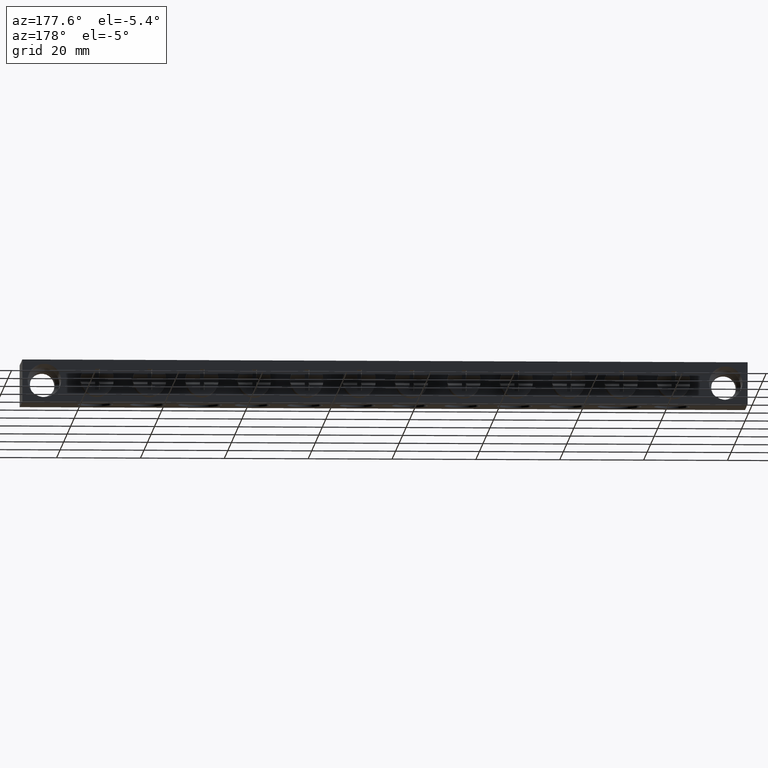
[diagram: clean part render]
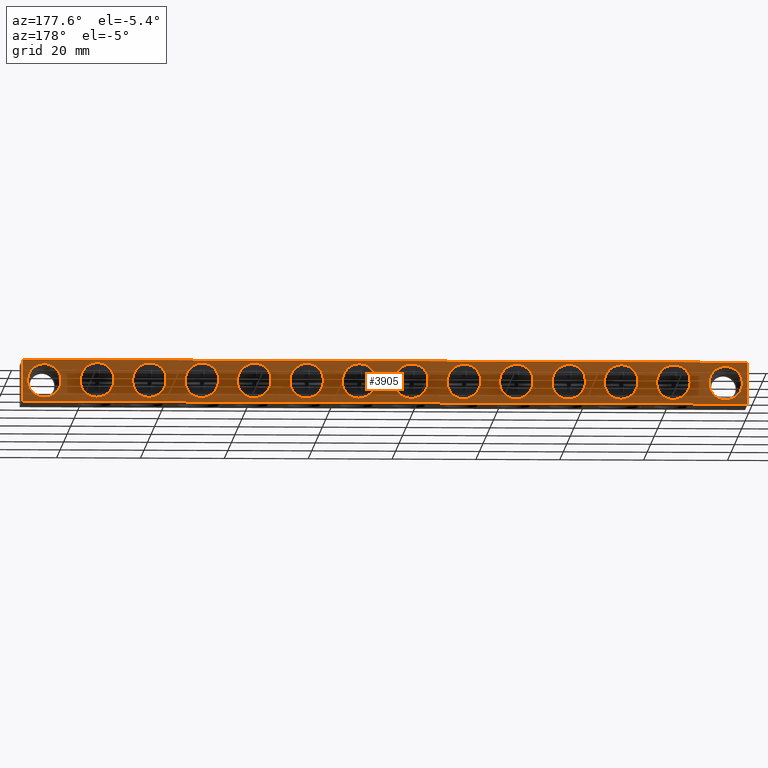
[diagram: same view with one face highlighted and labeled with its STEP entity id]
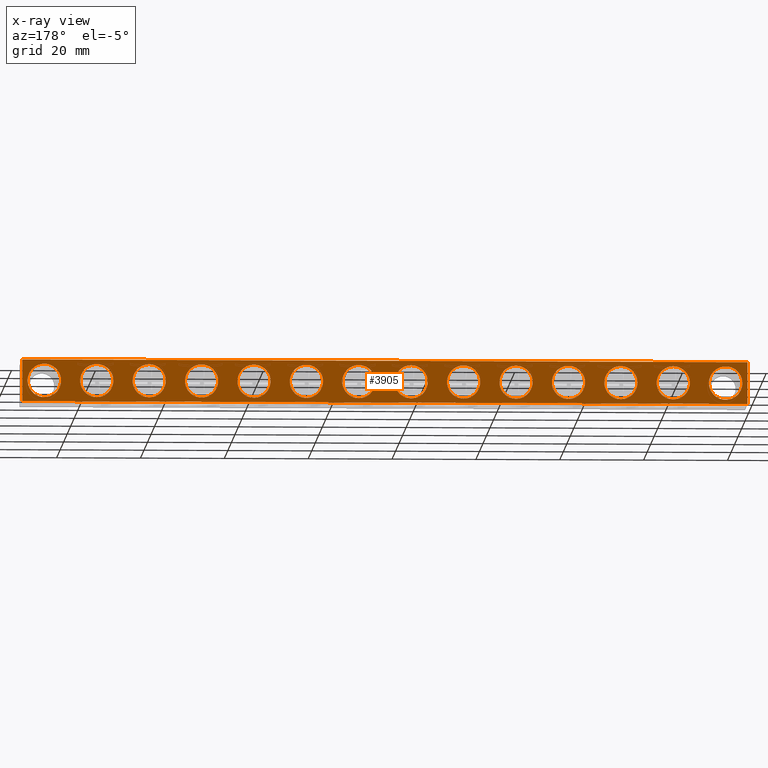
[diagram: x-ray of the same camera — body ghosted, the highlighted face saturated]
A machine part, auxiliary view. The second image highlights one B-rep face of the part: STEP entity #3905.
The next image is the same camera in x-ray: the body ghosted, the highlighted face saturated — about 0% of this face is hidden behind the body in this view.
In plain terms, the highlighted planar face has unit normal (0, -1, 0).
Its self-contained STEP definition (entity closure, byte-faithful):
#847 = CARTESIAN_POINT ( 'NONE',  ( 67.75000000000000000, 15.00000000000000000, -5.000000000000000000 ) ) ;
#861 = DIRECTION ( 'NONE',  ( 0.0000000000000000000, 1.000000000000000000, 0.0000000000000000000 ) ) ;
#887 = DIRECTION ( 'NONE',  ( 0.0000000000000000000, 0.0000000000000000000, 1.000000000000000000 ) ) ;
#1064 = CARTESIAN_POINT ( 'NONE',  ( 167.7499999999999700, 15.00000000000000000, -5.000000000000000000 ) ) ;
#1070 = DIRECTION ( 'NONE',  ( 1.156482317317877900E-016, 1.000000000000000000, 0.0000000000000000000 ) ) ;
#1083 = DIRECTION ( 'NONE',  ( -1.000000000000000000, 0.0000000000000000000, 0.0000000000000000000 ) ) ;
#1116 = DIRECTION ( 'NONE',  ( 0.0000000000000000000, 0.0000000000000000000, 1.000000000000000000 ) ) ;
#1131 = CARTESIAN_POINT ( 'NONE',  ( 30.25000000000000400, 15.00000000000000000, -5.000000000000000000 ) ) ;
#1139 = DIRECTION ( 'NONE',  ( 0.0000000000000000000, 1.000000000000000000, 0.0000000000000000000 ) ) ;
#1150 = DIRECTION ( 'NONE',  ( -1.156482317317877900E-016, 1.000000000000000000, 0.0000000000000000000 ) ) ;
#1151 = DIRECTION ( 'NONE',  ( 0.0000000000000000000, 0.0000000000000000000, 1.000000000000000000 ) ) ;
#1155 = DIRECTION ( 'NONE',  ( -1.000000000000000000, 0.0000000000000000000, 0.0000000000000000000 ) ) ;
#1158 = CARTESIAN_POINT ( 'NONE',  ( 55.25000000000000700, 15.00000000000000000, -5.000000000000000000 ) ) ;
#1161 = DIRECTION ( 'NONE',  ( 0.0000000000000000000, 0.0000000000000000000, 1.000000000000000000 ) ) ;
#1168 = DIRECTION ( 'NONE',  ( 0.0000000000000000000, 1.000000000000000000, 0.0000000000000000000 ) ) ;
#1172 = CARTESIAN_POINT ( 'NONE',  ( 5.250000000000000000, 15.00000000000000000, -5.000000000000000000 ) ) ;
#1180 = DIRECTION ( 'NONE',  ( 0.0000000000000000000, 1.000000000000000000, 0.0000000000000000000 ) ) ;
#1183 = CARTESIAN_POINT ( 'NONE',  ( 17.75000000000000700, 15.00000000000000000, -5.000000000000000000 ) ) ;
#1201 = DIRECTION ( 'NONE',  ( 0.0000000000000000000, 1.000000000000000000, 0.0000000000000000000 ) ) ;
#1206 = CARTESIAN_POINT ( 'NONE',  ( 42.75000000000000000, 15.00000000000000000, -5.000000000000000000 ) ) ;
#1210 = CARTESIAN_POINT ( 'NONE',  ( 80.25000000000000000, 15.00000000000000000, -5.000000000000000000 ) ) ;
#1213 = DIRECTION ( 'NONE',  ( 0.0000000000000000000, 1.000000000000000000, 0.0000000000000000000 ) ) ;
#1215 = DIRECTION ( 'NONE',  ( 0.0000000000000000000, 0.0000000000000000000, 1.000000000000000000 ) ) ;
#1229 = DIRECTION ( 'NONE',  ( 0.0000000000000000000, 0.0000000000000000000, 1.000000000000000000 ) ) ;
#1543 = FACE_BOUND ( 'NONE', #7070, .T. ) ;
#1556 = FACE_BOUND ( 'NONE', #7053, .T. ) ;
#1562 = FACE_OUTER_BOUND ( 'NONE', #7046, .T. ) ;
#1564 = FACE_BOUND ( 'NONE', #7021, .T. ) ;
#1565 = FACE_BOUND ( 'NONE', #7038, .T. ) ;
#1587 = FACE_BOUND ( 'NONE', #7047, .T. ) ;
#1588 = CARTESIAN_POINT ( 'NONE',  ( 0.0000000000000000000, 15.00000000000000000, -10.00000000000000000 ) ) ;
#1589 = DIRECTION ( 'NONE',  ( 0.0000000000000000000, -0.0000000000000000000, -1.000000000000000000 ) ) ;
#1596 = FACE_BOUND ( 'NONE', #7032, .T. ) ;
#1597 = FACE_BOUND ( 'NONE', #7072, .T. ) ;
#1602 = FACE_BOUND ( 'NONE', #7039, .T. ) ;
#1605 = FACE_BOUND ( 'NONE', #7029, .T. ) ;
#1612 = FACE_BOUND ( 'NONE', #7063, .T. ) ;
#1616 = FACE_BOUND ( 'NONE', #7042, .T. ) ;
#1626 = PLANE ( 'NONE',  #3471 ) ;
#1628 = FACE_BOUND ( 'NONE', #7066, .T. ) ;
#1631 = FACE_BOUND ( 'NONE', #7050, .T. ) ;
#1635 = FACE_BOUND ( 'NONE', #7031, .T. ) ;
#1638 = DIRECTION ( 'NONE',  ( 0.0000000000000000000, -1.000000000000000000, 0.0000000000000000000 ) ) ;
#1952 = EDGE_CURVE ( 'NONE', #7419, #7450, #3216, .T. ) ;
#2020 = EDGE_CURVE ( 'NONE', #7364, #7333, #3269, .T. ) ;
#2036 = EDGE_CURVE ( 'NONE', #7388, #7361, #3336, .T. ) ;
#2038 = EDGE_CURVE ( 'NONE', #7368, #7433, #3304, .T. ) ;
#2039 = EDGE_CURVE ( 'NONE', #7335, #7391, #3301, .T. ) ;
#2041 = EDGE_CURVE ( 'NONE', #7350, #7345, #3342, .T. ) ;
#2052 = EDGE_CURVE ( 'NONE', #7452, #7420, #3330, .T. ) ;
#2062 = EDGE_CURVE ( 'NONE', #7383, #7381, #3298, .T. ) ;
#2237 = DIRECTION ( 'NONE',  ( -1.000000000000000000, -0.0000000000000000000, 0.0000000000000000000 ) ) ;
#2248 = LINE ( 'NONE', #2249, #2743 ) ;
#2249 = CARTESIAN_POINT ( 'NONE',  ( 0.0000000000000000000, 15.00000000000000000, -10.00000000000000000 ) ) ;
#2334 = DIRECTION ( 'NONE',  ( 0.0000000000000000000, 1.000000000000000000, 0.0000000000000000000 ) ) ;
#2336 = CARTESIAN_POINT ( 'NONE',  ( 42.75000000000000000, 15.00000000000000000, -5.000000000000000000 ) ) ;
#2337 = LINE ( 'NONE', #2358, #2807 ) ;
#2355 = DIRECTION ( 'NONE',  ( 0.0000000000000000000, 0.0000000000000000000, 1.000000000000000000 ) ) ;
#2356 = DIRECTION ( 'NONE',  ( -1.000000000000000000, -0.0000000000000000000, -0.0000000000000000000 ) ) ;
#2358 = CARTESIAN_POINT ( 'NONE',  ( 0.0000000000000000000, 15.00000000000000000, 0.0000000000000000000 ) ) ;
#2361 = DIRECTION ( 'NONE',  ( 0.0000000000000000000, 0.0000000000000000000, 1.000000000000000000 ) ) ;
#2366 = DIRECTION ( 'NONE',  ( 0.0000000000000000000, 0.0000000000000000000, 1.000000000000000000 ) ) ;
#2368 = CARTESIAN_POINT ( 'NONE',  ( 30.25000000000000400, 15.00000000000000000, -5.000000000000000000 ) ) ;
#2373 = CARTESIAN_POINT ( 'NONE',  ( 80.25000000000000000, 15.00000000000000000, -5.000000000000000000 ) ) ;
#2376 = DIRECTION ( 'NONE',  ( 0.0000000000000000000, 1.000000000000000000, 0.0000000000000000000 ) ) ;
#2380 = DIRECTION ( 'NONE',  ( 0.0000000000000000000, 1.000000000000000000, 0.0000000000000000000 ) ) ;
#2390 = DIRECTION ( 'NONE',  ( 0.0000000000000000000, 1.000000000000000000, 0.0000000000000000000 ) ) ;
#2391 = DIRECTION ( 'NONE',  ( 0.0000000000000000000, 0.0000000000000000000, 1.000000000000000000 ) ) ;
#2394 = CARTESIAN_POINT ( 'NONE',  ( 17.75000000000000700, 15.00000000000000000, -5.000000000000000000 ) ) ;
#2398 = DIRECTION ( 'NONE',  ( 0.0000000000000000000, 1.000000000000000000, 0.0000000000000000000 ) ) ;
#2402 = CARTESIAN_POINT ( 'NONE',  ( 155.2500000000000000, 15.00000000000000000, -5.000000000000000000 ) ) ;
#2405 = CARTESIAN_POINT ( 'NONE',  ( 92.75000000000001400, 15.00000000000000000, -5.000000000000000000 ) ) ;
#2406 = DIRECTION ( 'NONE',  ( 0.0000000000000000000, 0.0000000000000000000, 1.000000000000000000 ) ) ;
#2409 = DIRECTION ( 'NONE',  ( 0.0000000000000000000, 0.0000000000000000000, 1.000000000000000000 ) ) ;
#2410 = DIRECTION ( 'NONE',  ( 0.0000000000000000000, 1.000000000000000000, 0.0000000000000000000 ) ) ;
#2413 = LINE ( 'NONE', #2417, #2857 ) ;
#2417 = CARTESIAN_POINT ( 'NONE',  ( 173.0000000000000600, 15.00000000000000000, -10.00000000000000000 ) ) ;
#2418 = DIRECTION ( 'NONE',  ( -0.0000000000000000000, 0.0000000000000000000, 1.000000000000000000 ) ) ;
#2420 = CARTESIAN_POINT ( 'NONE',  ( 67.75000000000000000, 15.00000000000000000, -5.000000000000000000 ) ) ;
#2421 = DIRECTION ( 'NONE',  ( 0.0000000000000000000, 1.000000000000000000, 0.0000000000000000000 ) ) ;
#2422 = DIRECTION ( 'NONE',  ( 0.0000000000000000000, 0.0000000000000000000, 1.000000000000000000 ) ) ;
#2427 = DIRECTION ( 'NONE',  ( 0.0000000000000000000, 0.0000000000000000000, 1.000000000000000000 ) ) ;
#2433 = CARTESIAN_POINT ( 'NONE',  ( 55.25000000000000700, 15.00000000000000000, -5.000000000000000000 ) ) ;
#2446 = DIRECTION ( 'NONE',  ( 0.0000000000000000000, 1.000000000000000000, 0.0000000000000000000 ) ) ;
#2452 = LINE ( 'NONE', #2463, #2892 ) ;
#2453 = DIRECTION ( 'NONE',  ( -1.156482317317877900E-016, 1.000000000000000000, 0.0000000000000000000 ) ) ;
#2463 = CARTESIAN_POINT ( 'NONE',  ( 0.0000000000000000000, 15.00000000000000000, 0.0000000000000000000 ) ) ;
#2470 = DIRECTION ( 'NONE',  ( -0.0000000000000000000, -0.0000000000000000000, 1.000000000000000000 ) ) ;
#2471 = DIRECTION ( 'NONE',  ( -1.000000000000000000, 0.0000000000000000000, 0.0000000000000000000 ) ) ;
#2478 = CARTESIAN_POINT ( 'NONE',  ( 5.250000000000000000, 15.00000000000000000, -5.000000000000000000 ) ) ;
#2482 = CARTESIAN_POINT ( 'NONE',  ( 142.7500000000000600, 15.00000000000000000, -5.000000000000000000 ) ) ;
#2486 = DIRECTION ( 'NONE',  ( 0.0000000000000000000, 0.0000000000000000000, 1.000000000000000000 ) ) ;
#2489 = DIRECTION ( 'NONE',  ( 0.0000000000000000000, 0.0000000000000000000, 1.000000000000000000 ) ) ;
#2492 = CARTESIAN_POINT ( 'NONE',  ( 117.7500000000000300, 15.00000000000000000, -5.000000000000000000 ) ) ;
#2498 = DIRECTION ( 'NONE',  ( 0.0000000000000000000, 1.000000000000000000, 0.0000000000000000000 ) ) ;
#2499 = DIRECTION ( 'NONE',  ( 0.0000000000000000000, 1.000000000000000000, 0.0000000000000000000 ) ) ;
#2501 = CARTESIAN_POINT ( 'NONE',  ( 105.2500000000000100, 15.00000000000000000, -5.000000000000000000 ) ) ;
#2502 = DIRECTION ( 'NONE',  ( 0.0000000000000000000, 0.0000000000000000000, 1.000000000000000000 ) ) ;
#2510 = DIRECTION ( 'NONE',  ( 0.0000000000000000000, 0.0000000000000000000, 1.000000000000000000 ) ) ;
#2515 = CARTESIAN_POINT ( 'NONE',  ( 130.2500000000000000, 15.00000000000000000, -5.000000000000000000 ) ) ;
#2516 = DIRECTION ( 'NONE',  ( 0.0000000000000000000, 1.000000000000000000, 0.0000000000000000000 ) ) ;
#2519 = DIRECTION ( 'NONE',  ( 0.0000000000000000000, 1.000000000000000000, 0.0000000000000000000 ) ) ;
#2668 = CIRCLE ( 'NONE', #2669, 4.000000000000031100 ) ;
#2669 = AXIS2_PLACEMENT_3D ( 'NONE', #6391, #6424, #6407 ) ;
#2743 = VECTOR ( 'NONE', #2237, 1000.000000000000000 ) ;
#2780 = AXIS2_PLACEMENT_3D ( 'NONE', #2336, #2334, #2355 ) ;
#2800 = CIRCLE ( 'NONE', #2823, 3.960000000000000000 ) ;
#2802 = AXIS2_PLACEMENT_3D ( 'NONE', #2373, #2380, #2366 ) ;
#2807 = VECTOR ( 'NONE', #2356, 1000.000000000000000 ) ;
#2819 = CIRCLE ( 'NONE', #2833, 3.960000000000000000 ) ;
#2821 = CIRCLE ( 'NONE', #2843, 3.960000000000000000 ) ;
#2823 = AXIS2_PLACEMENT_3D ( 'NONE', #2368, #2376, #2361 ) ;
#2829 = CIRCLE ( 'NONE', #2780, 3.960000000000000000 ) ;
#2832 = CIRCLE ( 'NONE', #2802, 3.960000000000000000 ) ;
#2833 = AXIS2_PLACEMENT_3D ( 'NONE', #2402, #2398, #2409 ) ;
#2843 = AXIS2_PLACEMENT_3D ( 'NONE', #2405, #2390, #2391 ) ;
#2844 = AXIS2_PLACEMENT_3D ( 'NONE', #2394, #2410, #2406 ) ;
#2851 = CIRCLE ( 'NONE', #2844, 3.960000000000000000 ) ;
#2854 = AXIS2_PLACEMENT_3D ( 'NONE', #2478, #2453, #2471 ) ;
#2857 = VECTOR ( 'NONE', #2418, 1000.000000000000000 ) ;
#2858 = CIRCLE ( 'NONE', #2883, 3.960000000000000000 ) ;
#2863 = CIRCLE ( 'NONE', #2864, 3.960000000000000000 ) ;
#2864 = AXIS2_PLACEMENT_3D ( 'NONE', #2482, #2519, #2510 ) ;
#2865 = AXIS2_PLACEMENT_3D ( 'NONE', #2515, #2499, #2486 ) ;
#2871 = CIRCLE ( 'NONE', #2872, 3.960000000000000000 ) ;
#2872 = AXIS2_PLACEMENT_3D ( 'NONE', #2501, #2516, #2502 ) ;
#2874 = CIRCLE ( 'NONE', #2875, 3.960000000000000000 ) ;
#2875 = AXIS2_PLACEMENT_3D ( 'NONE', #2492, #2498, #2489 ) ;
#2878 = AXIS2_PLACEMENT_3D ( 'NONE', #2433, #2446, #2427 ) ;
#2879 = CIRCLE ( 'NONE', #2878, 3.960000000000000000 ) ;
#2880 = CIRCLE ( 'NONE', #2854, 4.000000000000038200 ) ;
#2881 = CIRCLE ( 'NONE', #2865, 3.960000000000000000 ) ;
#2883 = AXIS2_PLACEMENT_3D ( 'NONE', #2420, #2421, #2422 ) ;
#2892 = VECTOR ( 'NONE', #2470, 1000.000000000000000 ) ;
#3216 = CIRCLE ( 'NONE', #3217, 3.960000000000000000 ) ;
#3217 = AXIS2_PLACEMENT_3D ( 'NONE', #847, #861, #887 ) ;
#3269 = CIRCLE ( 'NONE', #3273, 4.000000000000031100 ) ;
#3273 = AXIS2_PLACEMENT_3D ( 'NONE', #1064, #1070, #1083 ) ;
#3298 = CIRCLE ( 'NONE', #3299, 3.960000000000000000 ) ;
#3299 = AXIS2_PLACEMENT_3D ( 'NONE', #1206, #1213, #1215 ) ;
#3301 = CIRCLE ( 'NONE', #3327, 4.000000000000038200 ) ;
#3304 = CIRCLE ( 'NONE', #3313, 3.960000000000000000 ) ;
#3308 = AXIS2_PLACEMENT_3D ( 'NONE', #1131, #1139, #1116 ) ;
#3313 = AXIS2_PLACEMENT_3D ( 'NONE', #1158, #1180, #1151 ) ;
#3327 = AXIS2_PLACEMENT_3D ( 'NONE', #1172, #1150, #1155 ) ;
#3330 = CIRCLE ( 'NONE', #3345, 3.960000000000000000 ) ;
#3336 = CIRCLE ( 'NONE', #3308, 3.960000000000000000 ) ;
#3342 = CIRCLE ( 'NONE', #3343, 3.960000000000000000 ) ;
#3343 = AXIS2_PLACEMENT_3D ( 'NONE', #1183, #1168, #1161 ) ;
#3345 = AXIS2_PLACEMENT_3D ( 'NONE', #1210, #1201, #1229 ) ;
#3471 = AXIS2_PLACEMENT_3D ( 'NONE', #1588, #1638, #1589 ) ;
#3518 = AXIS2_PLACEMENT_3D ( 'NONE', #5804, #5808, #5826 ) ;
#3519 = CIRCLE ( 'NONE', #3518, 3.960000000000000000 ) ;
#3553 = CIRCLE ( 'NONE', #3564, 3.960000000000000000 ) ;
#3557 = AXIS2_PLACEMENT_3D ( 'NONE', #5799, #5800, #5864 ) ;
#3564 = AXIS2_PLACEMENT_3D ( 'NONE', #5874, #5896, #5876 ) ;
#3567 = CIRCLE ( 'NONE', #3595, 3.960000000000000000 ) ;
#3579 = CIRCLE ( 'NONE', #3557, 3.960000000000000000 ) ;
#3595 = AXIS2_PLACEMENT_3D ( 'NONE', #5941, #5926, #5927 ) ;
#3597 = CIRCLE ( 'NONE', #3598, 3.960000000000000000 ) ;
#3598 = AXIS2_PLACEMENT_3D ( 'NONE', #5967, #5971, #5974 ) ;
#3602 = CIRCLE ( 'NONE', #3611, 3.960000000000000000 ) ;
#3611 = AXIS2_PLACEMENT_3D ( 'NONE', #5977, #5985, #5956 ) ;
#3668 = CARTESIAN_POINT ( 'NONE',  ( 0.0000000000000000000, 15.00000000000000000, 0.0000000000000000000 ) ) ;
#3680 = CARTESIAN_POINT ( 'NONE',  ( 173.0000000000000600, 15.00000000000000000, 0.0000000000000000000 ) ) ;
#3695 = CARTESIAN_POINT ( 'NONE',  ( 0.0000000000000000000, 15.00000000000000000, -10.00000000000000000 ) ) ;
#3702 = CARTESIAN_POINT ( 'NONE',  ( 173.0000000000000600, 15.00000000000000000, -10.00000000000000000 ) ) ;
#3730 = CARTESIAN_POINT ( 'NONE',  ( 163.7499999999999400, 15.00000000000000000, -5.000000000000000000 ) ) ;
#3755 = CARTESIAN_POINT ( 'NONE',  ( 17.75000000000000700, 15.00000000000000000, -8.959999999999999100 ) ) ;
#3762 = CARTESIAN_POINT ( 'NONE',  ( 30.25000000000000400, 15.00000000000000000, -8.959999999999999100 ) ) ;
#3763 = CARTESIAN_POINT ( 'NONE',  ( 171.7500000000000000, 15.00000000000000000, -4.999999999999999100 ) ) ;
#3766 = CARTESIAN_POINT ( 'NONE',  ( 55.25000000000000700, 15.00000000000000000, -1.040000000000000000 ) ) ;
#3775 = CARTESIAN_POINT ( 'NONE',  ( 17.75000000000000700, 15.00000000000000000, -1.040000000000000000 ) ) ;
#3779 = CARTESIAN_POINT ( 'NONE',  ( 9.250000000000039100, 15.00000000000000000, -4.999999999999999100 ) ) ;
#3790 = CARTESIAN_POINT ( 'NONE',  ( 30.25000000000000400, 15.00000000000000000, -1.040000000000000000 ) ) ;
#3791 = CARTESIAN_POINT ( 'NONE',  ( 42.75000000000000000, 15.00000000000000000, -1.040000000000000000 ) ) ;
#3801 = CARTESIAN_POINT ( 'NONE',  ( 1.249999999999962000, 15.00000000000000000, -5.000000000000000000 ) ) ;
#3802 = CARTESIAN_POINT ( 'NONE',  ( 92.75000000000001400, 15.00000000000000000, -8.959999999999999100 ) ) ;
#3803 = CARTESIAN_POINT ( 'NONE',  ( 42.75000000000000000, 15.00000000000000000, -8.959999999999999100 ) ) ;
#3804 = CARTESIAN_POINT ( 'NONE',  ( 92.75000000000001400, 15.00000000000000000, -1.040000000000000000 ) ) ;
#3820 = CARTESIAN_POINT ( 'NONE',  ( 80.25000000000000000, 15.00000000000000000, -1.040000000000000000 ) ) ;
#3828 = CARTESIAN_POINT ( 'NONE',  ( 142.7500000000000600, 15.00000000000000000, -8.959999999999999100 ) ) ;
#3829 = CARTESIAN_POINT ( 'NONE',  ( 67.75000000000000000, 15.00000000000000000, -8.959999999999999100 ) ) ;
#3834 = CARTESIAN_POINT ( 'NONE',  ( 117.7500000000000300, 15.00000000000000000, -1.040000000000000000 ) ) ;
#3838 = CARTESIAN_POINT ( 'NONE',  ( 155.2500000000000000, 15.00000000000000000, -8.959999999999999100 ) ) ;
#3841 = CARTESIAN_POINT ( 'NONE',  ( 117.7500000000000300, 15.00000000000000000, -8.959999999999999100 ) ) ;
#3845 = CARTESIAN_POINT ( 'NONE',  ( 67.75000000000000000, 15.00000000000000000, -1.040000000000000000 ) ) ;
#3846 = CARTESIAN_POINT ( 'NONE',  ( 80.25000000000000000, 15.00000000000000000, -8.959999999999999100 ) ) ;
#3853 = CARTESIAN_POINT ( 'NONE',  ( 142.7500000000000600, 15.00000000000000000, -1.040000000000000000 ) ) ;
#3854 = CARTESIAN_POINT ( 'NONE',  ( 130.2500000000000000, 15.00000000000000000, -1.040000000000000000 ) ) ;
#3858 = CARTESIAN_POINT ( 'NONE',  ( 55.25000000000000700, 15.00000000000000000, -8.959999999999999100 ) ) ;
#3865 = CARTESIAN_POINT ( 'NONE',  ( 130.2500000000000000, 15.00000000000000000, -8.959999999999999100 ) ) ;
#3868 = CARTESIAN_POINT ( 'NONE',  ( 105.2500000000000100, 15.00000000000000000, -1.040000000000000000 ) ) ;
#3871 = CARTESIAN_POINT ( 'NONE',  ( 155.2500000000000000, 15.00000000000000000, -1.040000000000000000 ) ) ;
#3905 = ADVANCED_FACE ( 'NONE', ( #1556, #1562, #1587, #1612, #1564, #1565, #1596, #1597, #1631, #1543, #1605, #1635, #1616, #1602, #1628 ), #1626, .F. ) ;
#4002 = EDGE_CURVE ( 'NONE', #7461, #7465, #3519, .T. ) ;
#4010 = EDGE_CURVE ( 'NONE', #7443, #7413, #3579, .T. ) ;
#4033 = EDGE_CURVE ( 'NONE', #7403, #7394, #3553, .T. ) ;
#4048 = EDGE_CURVE ( 'NONE', #7439, #7481, #3567, .T. ) ;
#4054 = EDGE_CURVE ( 'NONE', #7453, #7463, #3602, .T. ) ;
#4057 = EDGE_CURVE ( 'NONE', #7438, #7448, #3597, .T. ) ;
#4145 = EDGE_CURVE ( 'NONE', #7333, #7364, #2668, .T. ) ;
#4182 = EDGE_CURVE ( 'NONE', #7293, #7268, #2248, .T. ) ;
#4208 = EDGE_CURVE ( 'NONE', #7381, #7383, #2829, .T. ) ;
#4211 = EDGE_CURVE ( 'NONE', #7291, #7286, #2337, .T. ) ;
#4215 = EDGE_CURVE ( 'NONE', #7361, #7388, #2800, .T. ) ;
#4216 = EDGE_CURVE ( 'NONE', #7420, #7452, #2832, .T. ) ;
#4223 = EDGE_CURVE ( 'NONE', #7463, #7453, #2819, .T. ) ;
#4224 = EDGE_CURVE ( 'NONE', #7394, #7403, #2821, .T. ) ;
#4226 = EDGE_CURVE ( 'NONE', #7345, #7350, #2851, .T. ) ;
#4233 = EDGE_CURVE ( 'NONE', #7293, #7291, #2413, .T. ) ;
#4234 = EDGE_CURVE ( 'NONE', #7450, #7419, #2858, .T. ) ;
#4240 = EDGE_CURVE ( 'NONE', #7433, #7368, #2879, .T. ) ;
#4248 = EDGE_CURVE ( 'NONE', #7391, #7335, #2880, .T. ) ;
#4249 = EDGE_CURVE ( 'NONE', #7268, #7286, #2452, .T. ) ;
#4251 = EDGE_CURVE ( 'NONE', #7413, #7443, #2881, .T. ) ;
#4253 = EDGE_CURVE ( 'NONE', #7481, #7439, #2871, .T. ) ;
#4254 = EDGE_CURVE ( 'NONE', #7465, #7461, #2874, .T. ) ;
#4255 = EDGE_CURVE ( 'NONE', #7448, #7438, #2863, .T. ) ;
#4999 = ORIENTED_EDGE ( 'NONE', *, *, #4248, .F. ) ;
#5005 = ORIENTED_EDGE ( 'NONE', *, *, #2041, .F. ) ;
#5006 = ORIENTED_EDGE ( 'NONE', *, *, #2062, .F. ) ;
#5007 = ORIENTED_EDGE ( 'NONE', *, *, #4233, .F. ) ;
#5008 = ORIENTED_EDGE ( 'NONE', *, *, #2038, .F. ) ;
#5010 = ORIENTED_EDGE ( 'NONE', *, *, #4033, .F. ) ;
#5014 = ORIENTED_EDGE ( 'NONE', *, *, #4234, .F. ) ;
#5019 = ORIENTED_EDGE ( 'NONE', *, *, #2036, .F. ) ;
#5020 = ORIENTED_EDGE ( 'NONE', *, *, #4010, .F. ) ;
#5026 = ORIENTED_EDGE ( 'NONE', *, *, #4208, .F. ) ;
#5027 = ORIENTED_EDGE ( 'NONE', *, *, #1952, .F. ) ;
#5035 = ORIENTED_EDGE ( 'NONE', *, *, #4254, .F. ) ;
#5038 = ORIENTED_EDGE ( 'NONE', *, *, #2039, .F. ) ;
#5039 = ORIENTED_EDGE ( 'NONE', *, *, #4145, .F. ) ;
#5047 = ORIENTED_EDGE ( 'NONE', *, *, #4224, .F. ) ;
#5048 = ORIENTED_EDGE ( 'NONE', *, *, #4002, .F. ) ;
#5049 = ORIENTED_EDGE ( 'NONE', *, *, #4215, .F. ) ;
#5056 = ORIENTED_EDGE ( 'NONE', *, *, #2052, .F. ) ;
#5058 = ORIENTED_EDGE ( 'NONE', *, *, #4255, .F. ) ;
#5060 = ORIENTED_EDGE ( 'NONE', *, *, #4240, .F. ) ;
#5067 = ORIENTED_EDGE ( 'NONE', *, *, #4211, .F. ) ;
#5071 = ORIENTED_EDGE ( 'NONE', *, *, #2020, .F. ) ;
#5072 = ORIENTED_EDGE ( 'NONE', *, *, #4249, .T. ) ;
#5073 = ORIENTED_EDGE ( 'NONE', *, *, #4216, .F. ) ;
#5074 = ORIENTED_EDGE ( 'NONE', *, *, #4253, .F. ) ;
#5080 = ORIENTED_EDGE ( 'NONE', *, *, #4182, .T. ) ;
#5081 = ORIENTED_EDGE ( 'NONE', *, *, #4057, .F. ) ;
#5101 = ORIENTED_EDGE ( 'NONE', *, *, #4226, .F. ) ;
#5106 = ORIENTED_EDGE ( 'NONE', *, *, #4223, .F. ) ;
#5107 = ORIENTED_EDGE ( 'NONE', *, *, #4251, .F. ) ;
#5108 = ORIENTED_EDGE ( 'NONE', *, *, #4054, .F. ) ;
#5121 = ORIENTED_EDGE ( 'NONE', *, *, #4048, .F. ) ;
#5799 = CARTESIAN_POINT ( 'NONE',  ( 130.2500000000000000, 15.00000000000000000, -5.000000000000000000 ) ) ;
#5800 = DIRECTION ( 'NONE',  ( 0.0000000000000000000, 1.000000000000000000, 0.0000000000000000000 ) ) ;
#5804 = CARTESIAN_POINT ( 'NONE',  ( 117.7500000000000300, 15.00000000000000000, -5.000000000000000000 ) ) ;
#5808 = DIRECTION ( 'NONE',  ( 0.0000000000000000000, 1.000000000000000000, 0.0000000000000000000 ) ) ;
#5826 = DIRECTION ( 'NONE',  ( 0.0000000000000000000, 0.0000000000000000000, 1.000000000000000000 ) ) ;
#5864 = DIRECTION ( 'NONE',  ( 0.0000000000000000000, 0.0000000000000000000, 1.000000000000000000 ) ) ;
#5874 = CARTESIAN_POINT ( 'NONE',  ( 92.75000000000001400, 15.00000000000000000, -5.000000000000000000 ) ) ;
#5876 = DIRECTION ( 'NONE',  ( 0.0000000000000000000, 0.0000000000000000000, 1.000000000000000000 ) ) ;
#5896 = DIRECTION ( 'NONE',  ( 0.0000000000000000000, 1.000000000000000000, 0.0000000000000000000 ) ) ;
#5926 = DIRECTION ( 'NONE',  ( 0.0000000000000000000, 1.000000000000000000, 0.0000000000000000000 ) ) ;
#5927 = DIRECTION ( 'NONE',  ( 0.0000000000000000000, 0.0000000000000000000, 1.000000000000000000 ) ) ;
#5941 = CARTESIAN_POINT ( 'NONE',  ( 105.2500000000000100, 15.00000000000000000, -5.000000000000000000 ) ) ;
#5956 = DIRECTION ( 'NONE',  ( 0.0000000000000000000, 0.0000000000000000000, 1.000000000000000000 ) ) ;
#5967 = CARTESIAN_POINT ( 'NONE',  ( 142.7500000000000600, 15.00000000000000000, -5.000000000000000000 ) ) ;
#5971 = DIRECTION ( 'NONE',  ( 0.0000000000000000000, 1.000000000000000000, 0.0000000000000000000 ) ) ;
#5974 = DIRECTION ( 'NONE',  ( 0.0000000000000000000, 0.0000000000000000000, 1.000000000000000000 ) ) ;
#5977 = CARTESIAN_POINT ( 'NONE',  ( 155.2500000000000000, 15.00000000000000000, -5.000000000000000000 ) ) ;
#5985 = DIRECTION ( 'NONE',  ( 0.0000000000000000000, 1.000000000000000000, 0.0000000000000000000 ) ) ;
#6391 = CARTESIAN_POINT ( 'NONE',  ( 167.7499999999999700, 15.00000000000000000, -5.000000000000000000 ) ) ;
#6407 = DIRECTION ( 'NONE',  ( -1.000000000000000000, 0.0000000000000000000, 0.0000000000000000000 ) ) ;
#6424 = DIRECTION ( 'NONE',  ( 1.156482317317877900E-016, 1.000000000000000000, 0.0000000000000000000 ) ) ;
#7021 = EDGE_LOOP ( 'NONE', ( #5019, #5049 ) ) ;
#7029 = EDGE_LOOP ( 'NONE', ( #5121, #5074 ) ) ;
#7031 = EDGE_LOOP ( 'NONE', ( #5048, #5035 ) ) ;
#7032 = EDGE_LOOP ( 'NONE', ( #5008, #5060 ) ) ;
#7038 = EDGE_LOOP ( 'NONE', ( #5006, #5026 ) ) ;
#7039 = EDGE_LOOP ( 'NONE', ( #5081, #5058 ) ) ;
#7042 = EDGE_LOOP ( 'NONE', ( #5020, #5107 ) ) ;
#7046 = EDGE_LOOP ( 'NONE', ( #5007, #5080, #5072, #5067 ) ) ;
#7047 = EDGE_LOOP ( 'NONE', ( #5039, #5071 ) ) ;
#7050 = EDGE_LOOP ( 'NONE', ( #5056, #5073 ) ) ;
#7053 = EDGE_LOOP ( 'NONE', ( #4999, #5038 ) ) ;
#7063 = EDGE_LOOP ( 'NONE', ( #5005, #5101 ) ) ;
#7066 = EDGE_LOOP ( 'NONE', ( #5108, #5106 ) ) ;
#7070 = EDGE_LOOP ( 'NONE', ( #5010, #5047 ) ) ;
#7072 = EDGE_LOOP ( 'NONE', ( #5027, #5014 ) ) ;
#7268 = VERTEX_POINT ( 'NONE', #3695 ) ;
#7286 = VERTEX_POINT ( 'NONE', #3668 ) ;
#7291 = VERTEX_POINT ( 'NONE', #3680 ) ;
#7293 = VERTEX_POINT ( 'NONE', #3702 ) ;
#7333 = VERTEX_POINT ( 'NONE', #3730 ) ;
#7335 = VERTEX_POINT ( 'NONE', #3779 ) ;
#7345 = VERTEX_POINT ( 'NONE', #3755 ) ;
#7350 = VERTEX_POINT ( 'NONE', #3775 ) ;
#7361 = VERTEX_POINT ( 'NONE', #3762 ) ;
#7364 = VERTEX_POINT ( 'NONE', #3763 ) ;
#7368 = VERTEX_POINT ( 'NONE', #3766 ) ;
#7381 = VERTEX_POINT ( 'NONE', #3803 ) ;
#7383 = VERTEX_POINT ( 'NONE', #3791 ) ;
#7388 = VERTEX_POINT ( 'NONE', #3790 ) ;
#7391 = VERTEX_POINT ( 'NONE', #3801 ) ;
#7394 = VERTEX_POINT ( 'NONE', #3802 ) ;
#7403 = VERTEX_POINT ( 'NONE', #3804 ) ;
#7413 = VERTEX_POINT ( 'NONE', #3865 ) ;
#7419 = VERTEX_POINT ( 'NONE', #3845 ) ;
#7420 = VERTEX_POINT ( 'NONE', #3846 ) ;
#7433 = VERTEX_POINT ( 'NONE', #3858 ) ;
#7438 = VERTEX_POINT ( 'NONE', #3853 ) ;
#7439 = VERTEX_POINT ( 'NONE', #3868 ) ;
#7443 = VERTEX_POINT ( 'NONE', #3854 ) ;
#7448 = VERTEX_POINT ( 'NONE', #3828 ) ;
#7450 = VERTEX_POINT ( 'NONE', #3829 ) ;
#7452 = VERTEX_POINT ( 'NONE', #3820 ) ;
#7453 = VERTEX_POINT ( 'NONE', #3871 ) ;
#7461 = VERTEX_POINT ( 'NONE', #3834 ) ;
#7463 = VERTEX_POINT ( 'NONE', #3838 ) ;
#7465 = VERTEX_POINT ( 'NONE', #3841 ) ;
#7481 = VERTEX_POINT ( 'NONE', #7917 ) ;
#7917 = CARTESIAN_POINT ( 'NONE',  ( 105.2500000000000100, 15.00000000000000000, -8.959999999999999100 ) ) ;